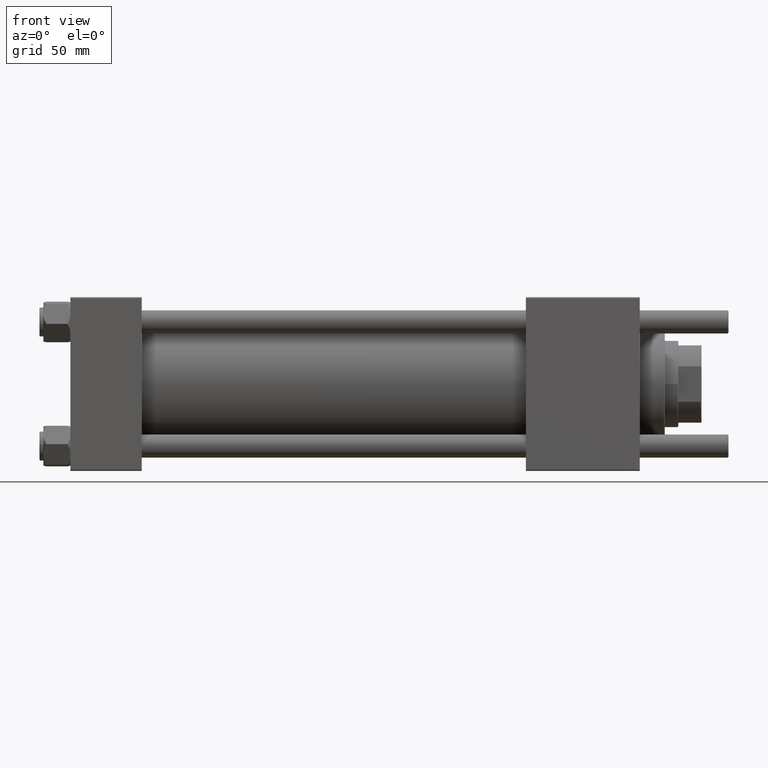
[diagram: clean part render]
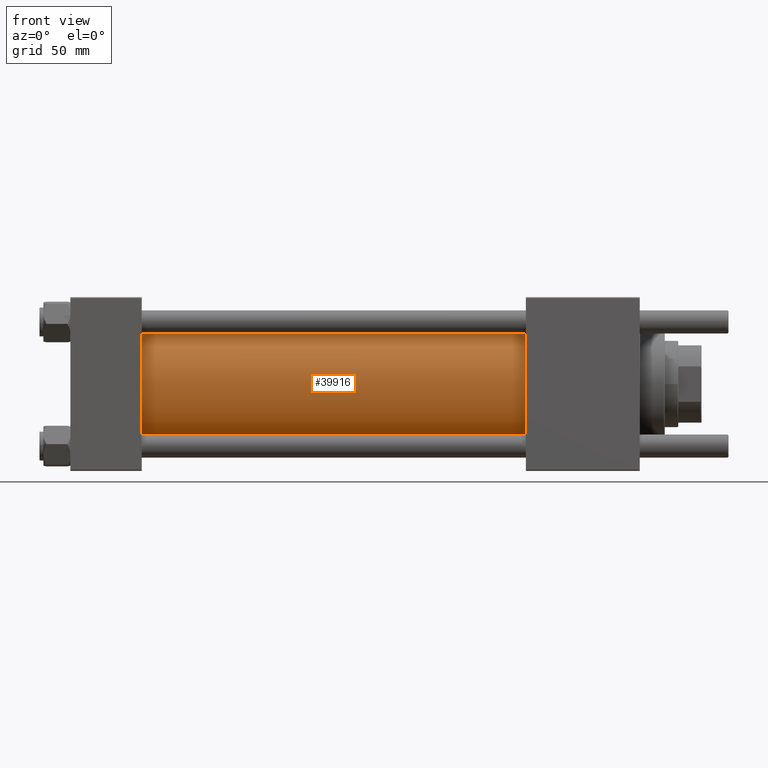
[diagram: same view with one face highlighted and labeled with its STEP entity id]
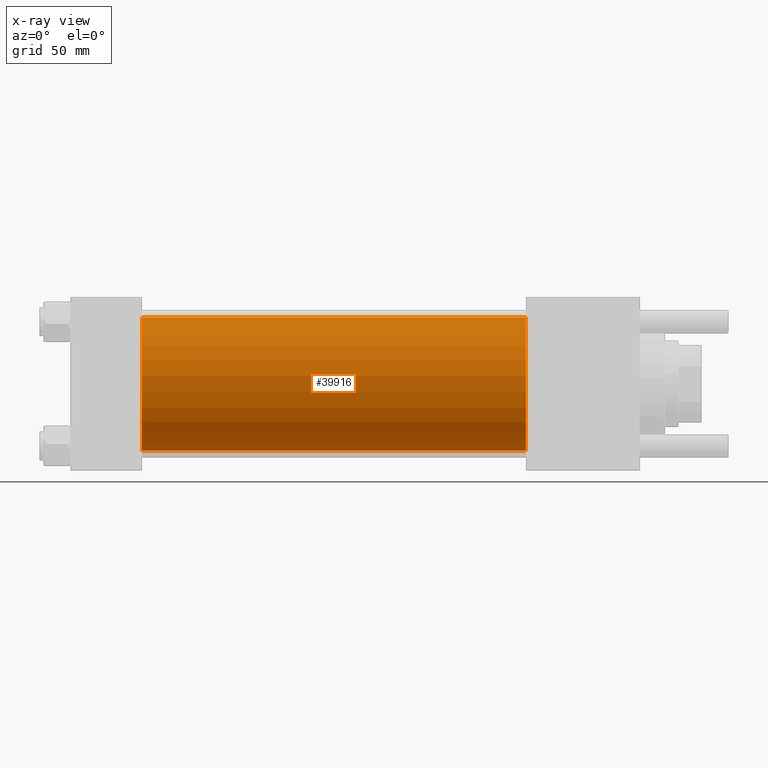
[diagram: x-ray of the same camera — body ghosted, the highlighted face saturated]
A machine part, front view. The second image highlights one B-rep face of the part: STEP entity #39916.
The next image is the same camera in x-ray: the body ghosted, the highlighted face saturated — about 0% of this face is hidden behind the body in this view.
In plain terms, the highlighted cylindrical surface (partial cylindrical patch) has radius 34.5 mm, axis along (-1, -0, -0).
Its self-contained STEP definition (entity closure, byte-faithful):
#196 = CARTESIAN_POINT ( 'NONE',  ( 236.0000000000000284, -2.602085213965210642E-15, 0.000000000000000000 ) ) ;
#1243 = VERTEX_POINT ( 'NONE', #42177 ) ;
#2579 = FACE_OUTER_BOUND ( 'NONE', #48690, .T. ) ;
#3706 = AXIS2_PLACEMENT_3D ( 'NONE', #50718, #28942, #24653 ) ;
#4104 = AXIS2_PLACEMENT_3D ( 'NONE', #196, #17674, #52623 ) ;
#6737 = VECTOR ( 'NONE', #36845, 1000.000000000000000 ) ;
#6808 = VECTOR ( 'NONE', #43237, 1000.000000000000000 ) ;
#8278 = LINE ( 'NONE', #25773, #6808 ) ;
#10496 = CARTESIAN_POINT ( 'NONE',  ( 236.0000000000000284, 1.622946243093158675E-15, -34.50000000000000000 ) ) ;
#10983 = ORIENTED_EDGE ( 'NONE', *, *, #52287, .T. ) ;
#13744 = AXIS2_PLACEMENT_3D ( 'NONE', #13923, #16332, #51283 ) ;
#13923 = CARTESIAN_POINT ( 'NONE',  ( 37.00000000000000711, -2.602085213965210642E-15, 0.000000000000000000 ) ) ;
#14240 = LINE ( 'NONE', #10496, #6737 ) ;
#15241 = CARTESIAN_POINT ( 'NONE',  ( 236.0000000000000284, -2.602085213965210642E-15, 34.50000000000000000 ) ) ;
#16332 = DIRECTION ( 'NONE',  ( 1.000000000000000000, -0.000000000000000000, 0.000000000000000000 ) ) ;
#17288 = CARTESIAN_POINT ( 'NONE',  ( 37.00000000000000711, -2.602085213965210642E-15, 34.50000000000000000 ) ) ;
#17674 = DIRECTION ( 'NONE',  ( 1.000000000000000000, 0.000000000000000000, 0.000000000000000000 ) ) ;
#19650 = VERTEX_POINT ( 'NONE', #23251 ) ;
#23251 = CARTESIAN_POINT ( 'NONE',  ( 37.00000000000000711, 1.622946243093158675E-15, -34.50000000000000000 ) ) ;
#24495 = ORIENTED_EDGE ( 'NONE', *, *, #53942, .F. ) ;
#24653 = DIRECTION ( 'NONE',  ( 0.000000000000000000, 0.000000000000000000, 1.000000000000000000 ) ) ;
#25073 = ORIENTED_EDGE ( 'NONE', *, *, #39986, .T. ) ;
#25773 = CARTESIAN_POINT ( 'NONE',  ( 236.0000000000000284, -2.602085213965210642E-15, 34.50000000000000000 ) ) ;
#27115 = VERTEX_POINT ( 'NONE', #17288 ) ;
#28942 = DIRECTION ( 'NONE',  ( -1.000000000000000000, -0.000000000000000000, -0.000000000000000000 ) ) ;
#32135 = EDGE_CURVE ( 'NONE', #1243, #19650, #14240, .T. ) ;
#33231 = CYLINDRICAL_SURFACE ( 'NONE', #3706, 34.50000000000000000 ) ;
#34426 = VERTEX_POINT ( 'NONE', #15241 ) ;
#35701 = CIRCLE ( 'NONE', #13744, 34.50000000000000000 ) ;
#36845 = DIRECTION ( 'NONE',  ( -1.000000000000000000, -0.000000000000000000, -0.000000000000000000 ) ) ;
#39916 = ADVANCED_FACE ( 'NONE', ( #2579 ), #33231, .T. ) ;
#39986 = EDGE_CURVE ( 'NONE', #27115, #19650, #35701, .T. ) ;
#42177 = CARTESIAN_POINT ( 'NONE',  ( 236.0000000000000284, 1.622946243093158675E-15, -34.50000000000000000 ) ) ;
#42352 = ORIENTED_EDGE ( 'NONE', *, *, #32135, .F. ) ;
#43237 = DIRECTION ( 'NONE',  ( -1.000000000000000000, -0.000000000000000000, -0.000000000000000000 ) ) ;
#47114 = CIRCLE ( 'NONE', #4104, 34.50000000000000000 ) ;
#48690 = EDGE_LOOP ( 'NONE', ( #42352, #24495, #10983, #25073 ) ) ;
#50718 = CARTESIAN_POINT ( 'NONE',  ( 236.0000000000000284, -2.602085213965210642E-15, 0.000000000000000000 ) ) ;
#51283 = DIRECTION ( 'NONE',  ( 0.000000000000000000, 0.000000000000000000, 1.000000000000000000 ) ) ;
#52287 = EDGE_CURVE ( 'NONE', #34426, #27115, #8278, .T. ) ;
#52623 = DIRECTION ( 'NONE',  ( 0.000000000000000000, 0.000000000000000000, -1.000000000000000000 ) ) ;
#53942 = EDGE_CURVE ( 'NONE', #34426, #1243, #47114, .T. ) ;